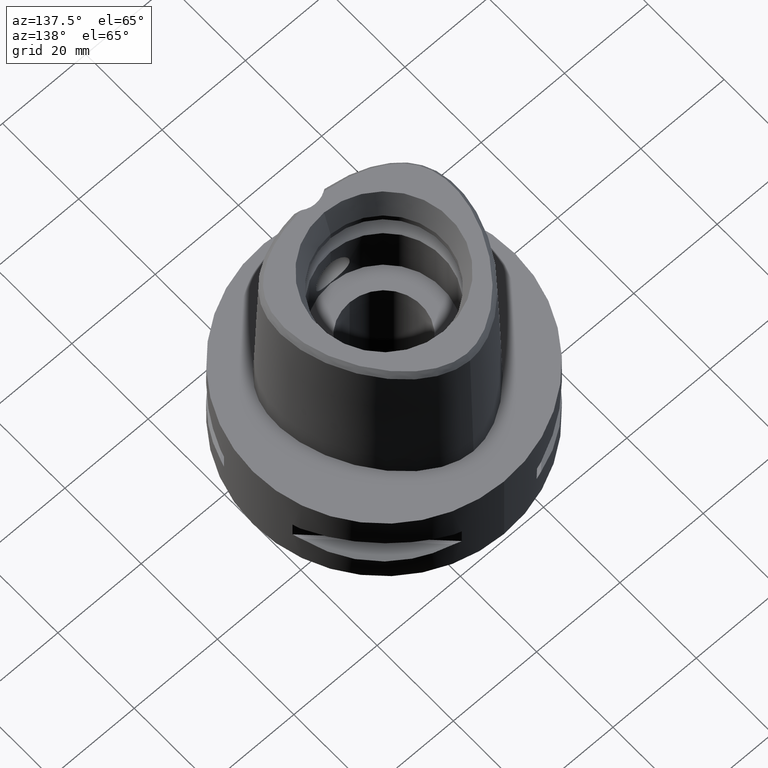
[diagram: clean part render]
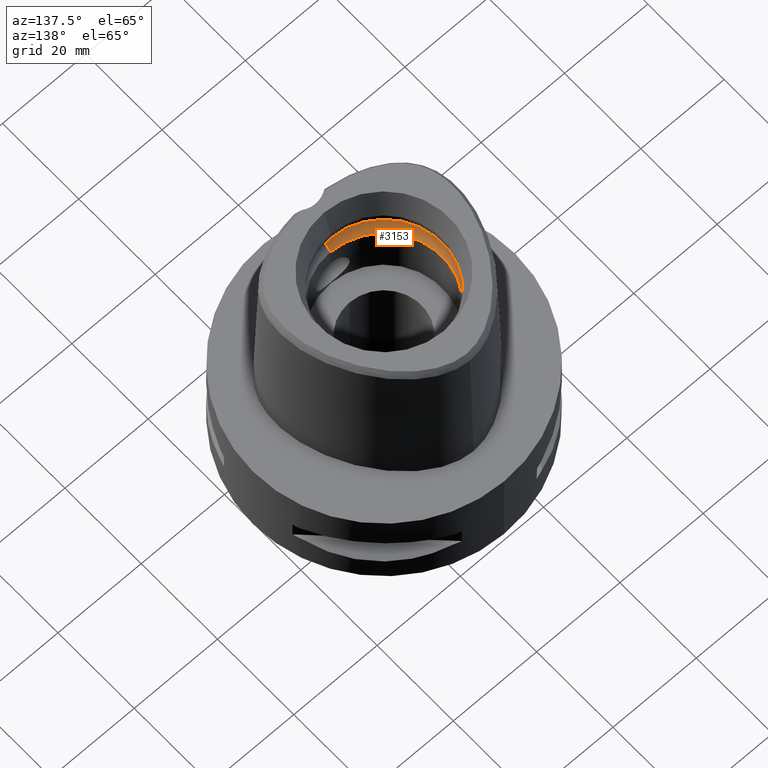
[diagram: same view with one face highlighted and labeled with its STEP entity id]
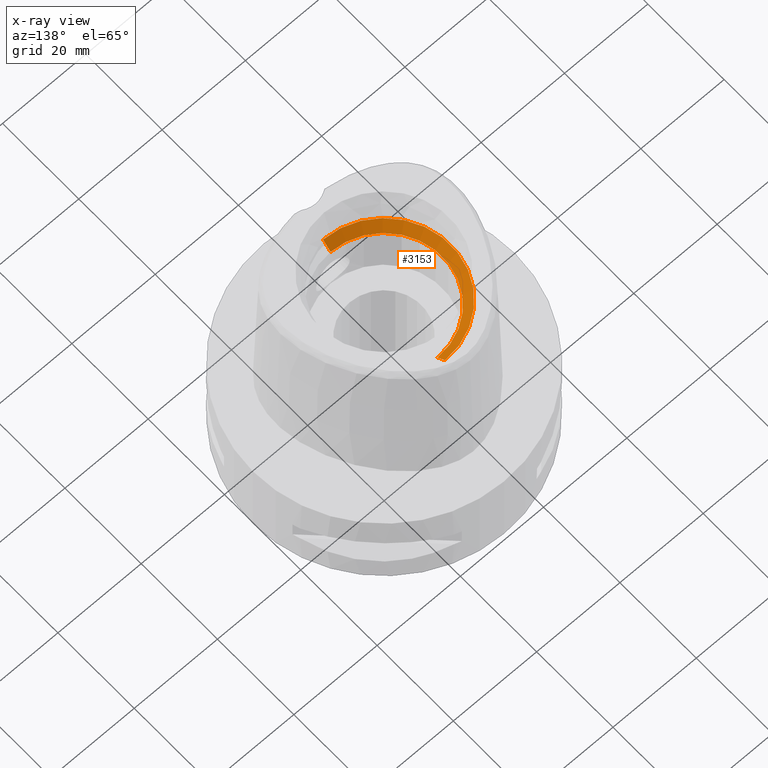
[diagram: x-ray of the same camera — body ghosted, the highlighted face saturated]
A machine part, auxiliary view. The second image highlights one B-rep face of the part: STEP entity #3153.
The next image is the same camera in x-ray: the body ghosted, the highlighted face saturated — about 0% of this face is hidden behind the body in this view.
In plain terms, the highlighted conical surface has half-angle 45 deg.
Its self-contained STEP definition (entity closure, byte-faithful):
#1052=DIRECTION('',(0.E0,-7.071067811865E-1,7.071067811865E-1));
#1053=VECTOR('',#1052,2.828427124746E0);
#1054=CARTESIAN_POINT('',(0.E0,-1.4E1,2.42E1));
#1055=LINE('',#1054,#1053);
#1059=CARTESIAN_POINT('',(0.E0,0.E0,2.62E1));
#1060=DIRECTION('',(0.E0,0.E0,-1.E0));
#1061=DIRECTION('',(0.E0,-1.E0,0.E0));
#1062=AXIS2_PLACEMENT_3D('',#1059,#1060,#1061);
#1067=CARTESIAN_POINT('',(0.E0,0.E0,2.42E1));
#1068=DIRECTION('',(0.E0,0.E0,1.E0));
#1069=DIRECTION('',(0.E0,1.E0,0.E0));
#1070=AXIS2_PLACEMENT_3D('',#1067,#1068,#1069);
#1083=DIRECTION('',(0.E0,7.071067811865E-1,7.071067811865E-1));
#1084=VECTOR('',#1083,2.828427124746E0);
#1085=CARTESIAN_POINT('',(0.E0,1.4E1,2.42E1));
#1086=LINE('',#1085,#1084);
#1796=CARTESIAN_POINT('',(0.E0,1.4E1,2.42E1));
#1797=VERTEX_POINT('',#1796);
#1798=CARTESIAN_POINT('',(0.E0,-1.4E1,2.42E1));
#1799=VERTEX_POINT('',#1798);
#1807=CARTESIAN_POINT('',(0.E0,-1.6E1,2.62E1));
#1808=VERTEX_POINT('',#1807);
#1809=CARTESIAN_POINT('',(0.E0,1.6E1,2.62E1));
#1810=VERTEX_POINT('',#1809);
#3139=CARTESIAN_POINT('',(0.E0,0.E0,2.52E1));
#3140=DIRECTION('',(0.E0,0.E0,1.E0));
#3141=DIRECTION('',(0.E0,1.E0,0.E0));
#3142=AXIS2_PLACEMENT_3D('',#3139,#3140,#3141);
#3143=CONICAL_SURFACE('',#3142,1.5E1,4.5E1);
#3145=ORIENTED_EDGE('',*,*,#3144,.T.);
#3147=ORIENTED_EDGE('',*,*,#3146,.T.);
#3149=ORIENTED_EDGE('',*,*,#3148,.F.);
#3150=ORIENTED_EDGE('',*,*,#2977,.T.);
#3151=EDGE_LOOP('',(#3145,#3147,#3149,#3150));
#3152=FACE_OUTER_BOUND('',#3151,.F.);
#1063=CIRCLE('',#1062,1.6E1);
#1071=CIRCLE('',#1070,1.4E1);
#2977=EDGE_CURVE('',#1797,#1799,#1071,.T.);
#3144=EDGE_CURVE('',#1799,#1808,#1055,.T.);
#3146=EDGE_CURVE('',#1808,#1810,#1063,.T.);
#3148=EDGE_CURVE('',#1797,#1810,#1086,.T.);
#3153=ADVANCED_FACE('',(#3152),#3143,.F.);